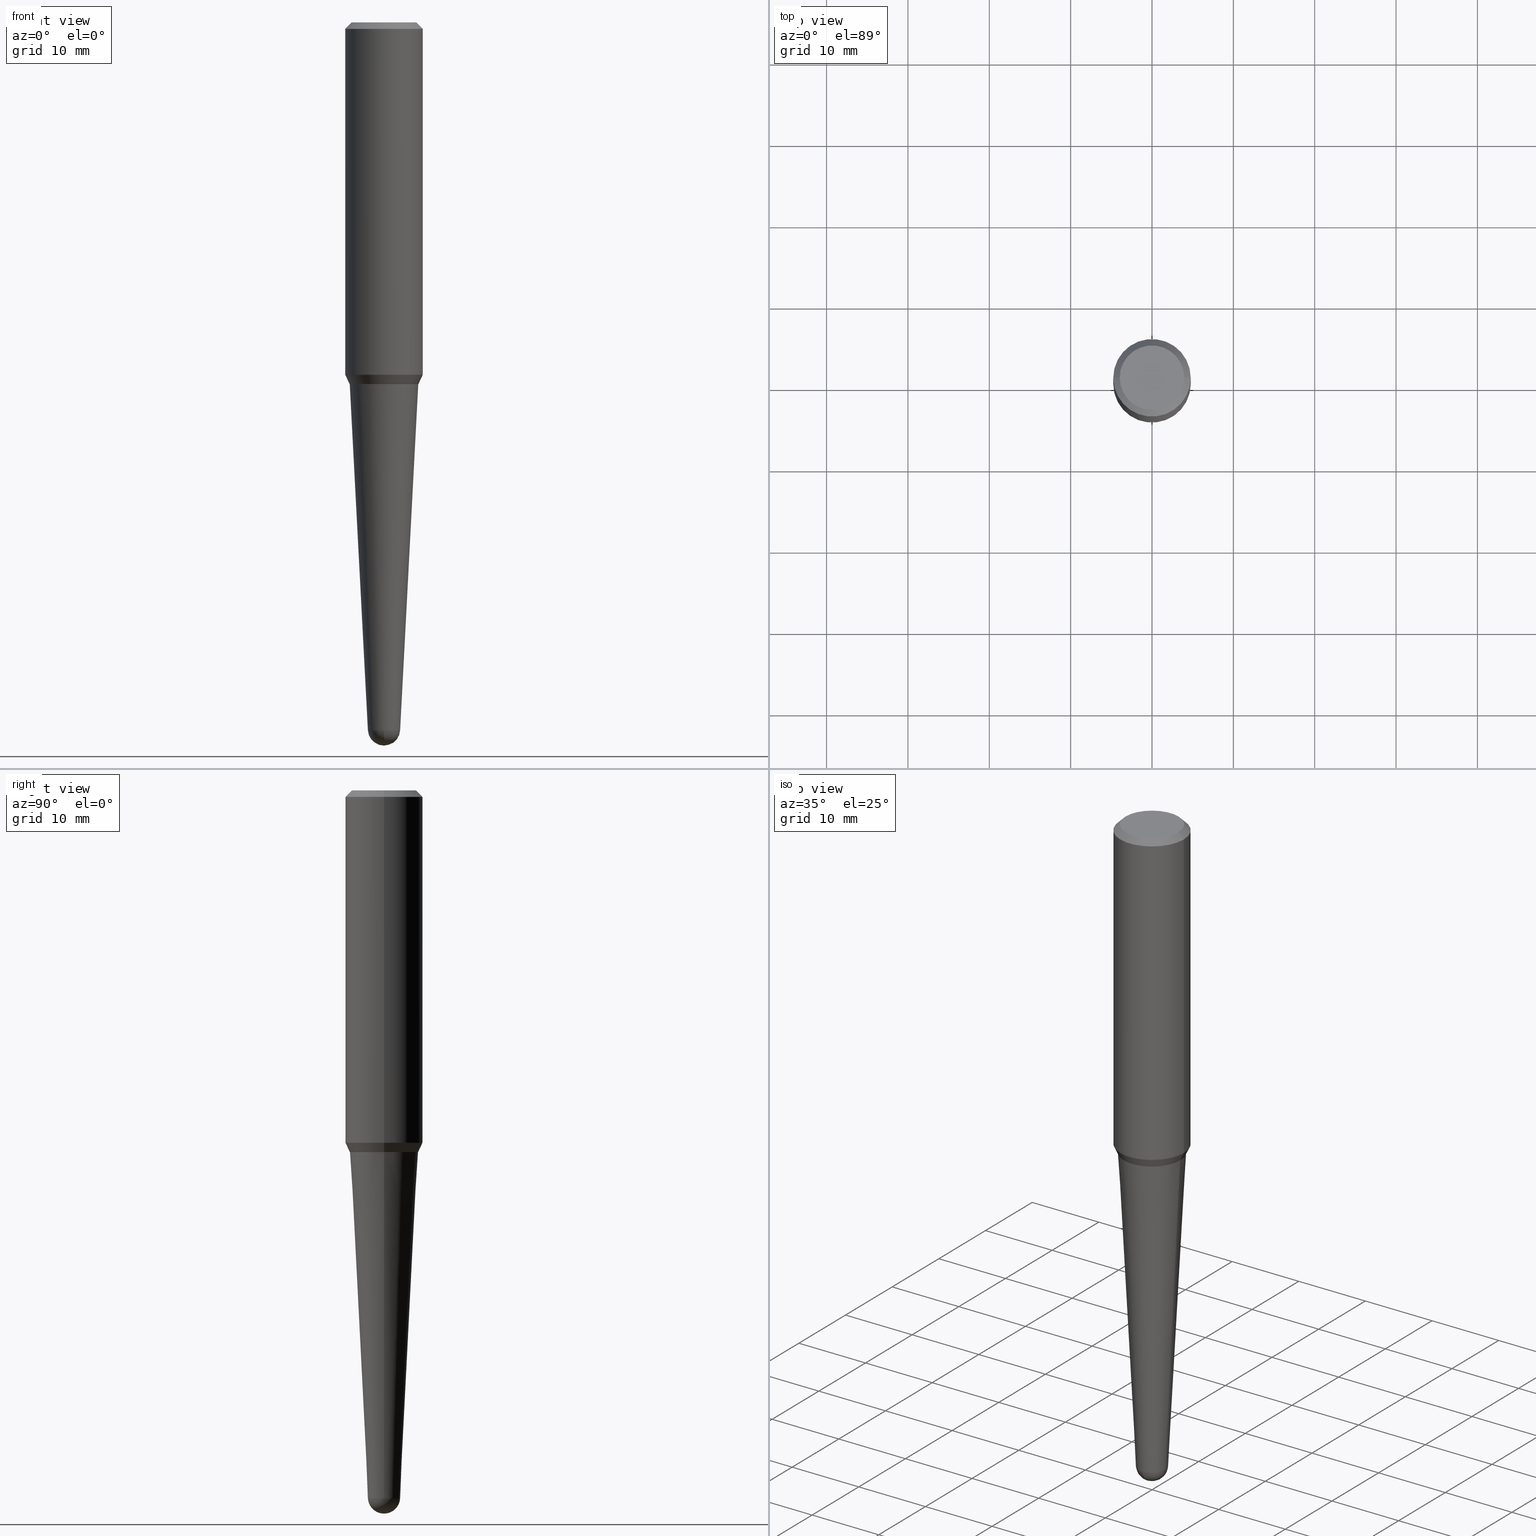
[diagram: canonical four-view strip — front | top / right | iso, engineering-drawing reading convention]
A machine part, canonical four-view strip (front | top / right | iso — engineering-drawing reading convention). The complete STEP part file that produces these views, byte-faithful:
ISO-10303-21;
HEADER;
FILE_DESCRIPTION (( 'STEP AP203' ),
    '1' );
FILE_NAME ('32423.STEP',
    '2024-03-04T15:23:28',
    ( '' ),
    ( '' ),
    'SwSTEP 2.0',
    'SolidWorks 2023',
    '' );
FILE_SCHEMA (( 'CONFIG_CONTROL_DESIGN' ));
ENDSEC;

DATA;
#1 = CIRCLE ( 'NONE', #303, 0.07809999999999994724 ) ;
#2 = CC_DESIGN_SECURITY_CLASSIFICATION ( #407, ( #294 ) ) ;
#3 = DIRECTION ( 'NONE',  ( 2.445468806185136597E-29, -3.491481338843145583E-15, -1.000000000000000000 ) ) ;
#4 = CARTESIAN_POINT ( 'NONE',  ( 7.722011548868259977E-45, -1.102498594666746165E-30, -3.157681475771667581E-16 ) ) ;
#5 = PRODUCT_RELATED_PRODUCT_CATEGORY ( 'detail', '', ( #6 ) ) ;
#6 = PRODUCT ( '32423', '32423', '', ( #340 ) ) ;
#7 = PLANE ( 'NONE',  #127 ) ;
#8 = DIRECTION ( 'NONE',  ( -2.445468806185136597E-29, 3.491481338843145583E-15, 1.000000000000000000 ) ) ;
#9 = CARTESIAN_POINT ( 'NONE',  ( 0.1874999999999999722, -1.395452166421010480E-15, -0.03125000000000003469 ) ) ;
#10 = VECTOR ( 'NONE', #202, 39.37007874015748143 ) ;
#11 = DIRECTION ( 'NONE',  ( -2.445468806185136597E-29, 3.491481338843145583E-15, 1.000000000000000000 ) ) ;
#12 = EDGE_CURVE ( 'NONE', #411, #355, #79, .T. ) ;
#13 = AXIS2_PLACEMENT_3D ( 'NONE', #384, #3, #298 ) ;
#14 = ORIENTED_EDGE ( 'NONE', *, *, #350, .T. ) ;
#15 = EDGE_CURVE ( 'NONE', #355, #287, #195, .T. ) ;
#16 = APPROVAL_ROLE ( '' ) ;
#17 = CC_DESIGN_DATE_AND_TIME_ASSIGNMENT ( #316, #450, ( #267 ) ) ;
#18 = VECTOR ( 'NONE', #256, 39.37007874015748854 ) ;
#19 = DATE_AND_TIME ( #348, #401 ) ;
#20 = LOCAL_TIME ( 10, 23, 28.00000000000000000, #372 ) ;
#21 = CARTESIAN_POINT ( 'NONE',  ( -1.450455682483482035E-44, 2.070866303999251778E-30, 5.931196827434296760E-16 ) ) ;
#22 = ORIENTED_EDGE ( 'NONE', *, *, #434, .T. ) ;
#23 = APPROVAL_STATUS ( 'not_yet_approved' ) ;
#24 = VERTEX_POINT ( 'NONE', #155 ) ;
#25 = CARTESIAN_POINT ( 'NONE',  ( 0.1875000000000002220, -7.262868483743506194E-15, -1.705168209104609645 ) ) ;
#26 = ORIENTED_EDGE ( 'NONE', *, *, #357, .F. ) ;
#27 = DIRECTION ( 'NONE',  ( -2.445468806185136597E-29, 3.491481338843145583E-15, 1.000000000000000000 ) ) ;
#28 = AXIS2_PLACEMENT_3D ( 'NONE', #153, #424, #189 ) ;
#29 = CARTESIAN_POINT ( 'NONE',  ( 0.1658277464057546224, -7.268061307051711819E-15, -1.750000000000000000 ) ) ;
#30 = DATE_AND_TIME ( #69, #82 ) ;
#31 = FACE_OUTER_BOUND ( 'NONE', #385, .T. ) ;
#32 = APPLICATION_PROTOCOL_DEFINITION ( 'international standard', 'config_control_design', 1994, #410 ) ;
#33 = EDGE_CURVE ( 'NONE', #209, #266, #203, .T. ) ;
#34 = CARTESIAN_POINT ( 'NONE',  ( 7.642090019328561499E-31, -1.091087918388484350E-16, -0.03125000000000003469 ) ) ;
#35 = DIRECTION ( 'NONE',  ( 0.4226182617406897268, 2.132291770428246021E-16, 0.9063077870366544886 ) ) ;
#36 = CARTESIAN_POINT ( 'NONE',  ( 4.279570410823988484E-29, -6.110092342975504671E-15, -1.750000000000000000 ) ) ;
#37 = DIRECTION ( 'NONE',  ( 1.000000000000000000, -6.982962677686263555E-15, 0.000000000000000000 ) ) ;
#38 = LENGTH_MEASURE_WITH_UNIT ( LENGTH_MEASURE( 0.02539999999999999897 ), #200 );
#39 = CARTESIAN_POINT ( 'NONE',  ( 0.1874999999999999722, -1.418414293905023123E-15, -0.03125000000000003469 ) ) ;
#40 = DIRECTION ( 'NONE',  ( 1.000000000000000000, -6.982962677686263555E-15, 0.000000000000000000 ) ) ;
#41 = DIRECTION ( 'NONE',  ( -0.4226182617406897268, 6.167240084480783969E-15, 0.9063077870366544886 ) ) ;
#42 = DIRECTION ( 'NONE',  ( 1.000000000000000000, -6.982962677686266711E-15, 0.000000000000000000 ) ) ;
#43 = AXIS2_PLACEMENT_3D ( 'NONE', #452, #445, #277 ) ;
#44 = APPROVAL ( #101, 'UNSPECIFIED' ) ;
#45 = ORIENTED_EDGE ( 'NONE', *, *, #243, .T. ) ;
#46 = CC_DESIGN_PERSON_AND_ORGANIZATION_ASSIGNMENT ( #205, #446, ( #407 ) ) ;
#47 = EDGE_CURVE ( 'NONE', #371, #194, #419, .T. ) ;
#48 = ORIENTED_EDGE ( 'NONE', *, *, #159, .T. ) ;
#49 = AXIS2_PLACEMENT_3D ( 'NONE', #120, #183, #149 ) ;
#50 = EDGE_CURVE ( 'NONE', #252, #272, #118, .T. ) ;
#51 = AXIS2_PLACEMENT_3D ( 'NONE', #21, #130, #142 ) ;
#52 = ADVANCED_FACE ( 'NONE', ( #427 ), #375, .T. ) ;
#53 = EDGE_CURVE ( 'NONE', #70, #355, #1, .T. ) ;
#54 = EDGE_LOOP ( 'NONE', ( #125, #14, #306, #26, #45 ) ) ;
#55 = APPLICATION_PROTOCOL_DEFINITION ( 'international standard', 'config_control_design', 1994, #436 ) ;
#56 = CALENDAR_DATE ( 2024, 4, 3 ) ;
#57 = CARTESIAN_POINT ( 'NONE',  ( 4.169935664663897396E-29, -5.953562981677331975E-15, -1.705168209104609645 ) ) ;
#58 = EDGE_CURVE ( 'NONE', #284, #456, #269, .T. ) ;
#59 = AXIS2_PLACEMENT_3D ( 'NONE', #295, #227, #37 ) ;
#60 = SECURITY_CLASSIFICATION_LEVEL ( 'unclassified' ) ;
#61 = APPROVAL_PERSON_ORGANIZATION ( #134, #44, #16 ) ;
#62 = CARTESIAN_POINT ( 'NONE',  ( 8.378145410457613452E-29, -1.196177120752549174E-14, -3.425987438182573896 ) ) ;
#63 = ORIENTED_EDGE ( 'NONE', *, *, #367, .F. ) ;
#64 = FACE_OUTER_BOUND ( 'NONE', #268, .T. ) ;
#65 = PERSON_AND_ORGANIZATION ( #198, #395 ) ;
#66 = ORIENTED_EDGE ( 'NONE', *, *, #434, .F. ) ;
#67 = DIRECTION ( 'NONE',  ( -2.438088387897960049E-29, 3.491481338843145188E-15, 1.000000000000000000 ) ) ;
#68 = CARTESIAN_POINT ( 'NONE',  ( 4.169935664663897396E-29, -5.953562981677331975E-15, -1.705168209104609645 ) ) ;
#69 = CALENDAR_DATE ( 2024, 4, 3 ) ;
#70 = VERTEX_POINT ( 'NONE', #331 ) ;
#71 = CIRCLE ( 'NONE', #43, 0.1874999999999999722 ) ;
#72 = CARTESIAN_POINT ( 'NONE',  ( 4.279570410823988484E-29, -6.110092342975503093E-15, -1.749999999999999556 ) ) ;
#73 = DIRECTION ( 'NONE',  ( 1.000000000000000000, -6.982962677686263555E-15, 0.000000000000000000 ) ) ;
#74 = LINE ( 'NONE', #212, #165 ) ;
#75 = EDGE_CURVE ( 'NONE', #194, #266, #334, .T. ) ;
#76 = DIRECTION ( 'NONE',  ( 1.000000000000000000, -6.982962677686265133E-15, 0.000000000000000000 ) ) ;
#77 = DIRECTION ( 'NONE',  ( -1.000000000000000000, 6.982962677686265922E-15, -4.876176775795935793E-29 ) ) ;
#78 = DIRECTION ( 'NONE',  ( -2.445468806185136597E-29, 3.491481338843145583E-15, 1.000000000000000000 ) ) ;
#79 = CIRCLE ( 'NONE', #138, 0.07799296666433265524 ) ;
#80 = ORIENTED_EDGE ( 'NONE', *, *, #228, .F. ) ;
#81 = AXIS2_PLACEMENT_3D ( 'NONE', #365, #217, #358 ) ;
#82 = LOCAL_TIME ( 10, 23, 28.00000000000000000, #354 ) ;
#83 = DIRECTION ( 'NONE',  ( 0.7071067811864750752, -2.468850131081498176E-15, 0.7071067811866199593 ) ) ;
#84 = DIRECTION ( 'NONE',  ( 2.438088387897960049E-29, -3.491481338843145188E-15, -1.000000000000000000 ) ) ;
#85 = DIRECTION ( 'NONE',  ( -1.000000000000000000, 7.105427357601001070E-15, -4.926315508542082329E-29 ) ) ;
#86 = AXIS2_PLACEMENT_3D ( 'NONE', #180, #8, #360 ) ;
#87 = ORIENTED_EDGE ( 'NONE', *, *, #357, .T. ) ;
#88 = EDGE_CURVE ( 'NONE', #392, #411, #113, .T. ) ;
#89 = DIRECTION ( 'NONE',  ( 1.000000000000000000, 0.000000000000000000, 0.000000000000000000 ) ) ;
#90 = ORIENTED_EDGE ( 'NONE', *, *, #243, .F. ) ;
#91 = VECTOR ( 'NONE', #35, 39.37007874015748143 ) ;
#92 = LOCAL_TIME ( 10, 23, 28.00000000000000000, #280 ) ;
#93 = CARTESIAN_POINT ( 'NONE',  ( 8.293775826086788448E-29, -3.615217139357610572E-16, -1.750000000000000000 ) ) ;
#94 = ADVANCED_BREP_SHAPE_REPRESENTATION ( '32423', ( #97, #249, #186 ), #242 ) ;
#95 = APPROVAL_DATE_TIME ( #136, #44 ) ;
#96 = FACE_OUTER_BOUND ( 'NONE', #377, .T. ) ;
#97 = MANIFOLD_SOLID_BREP ( 'Body-Move/Copy2[1]', #222 ) ;
#98 = APPROVAL_DATE_TIME ( #19, #104 ) ;
#99 = DIRECTION ( 'NONE',  ( 1.000000000000000000, -6.982962677686266711E-15, 0.000000000000000000 ) ) ;
#100 = CONICAL_SURFACE ( 'NONE', #362, 0.1663277464057547061, 0.7853981633973459164 ) ;
#101 = APPROVAL_STATUS ( 'not_yet_approved' ) ;
#102 = ORIENTED_EDGE ( 'NONE', *, *, #75, .T. ) ;
#103 = LINE ( 'NONE', #351, #10 ) ;
#104 = APPROVAL ( #23, 'UNSPECIFIED' ) ;
#105 = COORDINATED_UNIVERSAL_TIME_OFFSET ( 5, 0, .BEHIND. ) ;
#106 = ORIENTED_EDGE ( 'NONE', *, *, #367, .T. ) ;
#107 = CARTESIAN_POINT ( 'NONE',  ( -0.07799296666433265524, -8.169706592751506412E-15, -3.425987438182573896 ) ) ;
#108 = DIRECTION ( 'NONE',  ( 2.438088387897960049E-29, -3.491481338843145188E-15, -1.000000000000000000 ) ) ;
#109 = ORIENTED_EDGE ( 'NONE', *, *, #228, .T. ) ;
#110 = CARTESIAN_POINT ( 'NONE',  ( 0.07799296666433265524, -9.887227244958132819E-15, -3.425987438182573896 ) ) ;
#111 = ORIENTED_EDGE ( 'NONE', *, *, #15, .T. ) ;
#112 = CC_DESIGN_PERSON_AND_ORGANIZATION_ASSIGNMENT ( #408, #374, ( #294 ) ) ;
#113 = CIRCLE ( 'NONE', #59, 0.07799296666433265524 ) ;
#114 = CARTESIAN_POINT ( 'NONE',  ( -0.07799296666433265524, -1.140759784848827963E-14, -3.425987438182573896 ) ) ;
#115 = DIRECTION ( 'NONE',  ( -7.105427357601000281E-15, -1.000000000000000000, 0.000000000000000000 ) ) ;
#116 = ADVANCED_FACE ( 'NONE', ( #31 ), #396, .F. ) ;
#117 = DIRECTION ( 'NONE',  ( 2.445468806185136597E-29, -3.491481338843145583E-15, -1.000000000000000000 ) ) ;
#118 = LINE ( 'NONE', #219, #91 ) ;
#119 = ORIENTED_EDGE ( 'NONE', *, *, #12, .T. ) ;
#120 = CARTESIAN_POINT ( 'NONE',  ( 8.659436449305203062E-29, -1.153036080066178855E-14, -3.421899999999999942 ) ) ;
#121 = CARTESIAN_POINT ( 'NONE',  ( 4.279570410823988484E-29, -6.110092342975503093E-15, -1.749999999999999556 ) ) ;
#122 =( CONVERSION_BASED_UNIT ( 'INCH', #38 ) LENGTH_UNIT ( ) NAMED_UNIT ( #448 ) );
#123 = ORIENTED_EDGE ( 'NONE', *, *, #33, .F. ) ;
#124 = VECTOR ( 'NONE', #373, 39.37007874015748854 ) ;
#125 = ORIENTED_EDGE ( 'NONE', *, *, #88, .T. ) ;
#126 = ORIENTED_EDGE ( 'NONE', *, *, #409, .T. ) ;
#127 = AXIS2_PLACEMENT_3D ( 'NONE', #36, #108, #77 ) ;
#128 = EDGE_LOOP ( 'NONE', ( #314, #102, #126, #247 ) ) ;
#129 = ORIENTED_EDGE ( 'NONE', *, *, #224, .F. ) ;
#130 = DIRECTION ( 'NONE',  ( -2.445468806185136597E-29, 3.491481338843145583E-15, 1.000000000000000000 ) ) ;
#131 = AXIS2_PLACEMENT_3D ( 'NONE', #322, #211, #239 ) ;
#132 = AXIS2_PLACEMENT_3D ( 'NONE', #93, #67, #237 ) ;
#133 = CARTESIAN_POINT ( 'NONE',  ( -0.1663277464057547061, -4.925613396161822668E-15, -1.749999999999999556 ) ) ;
#134 = PERSON_AND_ORGANIZATION ( #198, #395 ) ;
#135 = CARTESIAN_POINT ( 'NONE',  ( -0.1874999999999999722, 1.200196710227326499E-15, -0.03125000000000003469 ) ) ;
#136 = DATE_AND_TIME ( #307, #454 ) ;
#137 = EDGE_LOOP ( 'NONE', ( #363, #304, #265, #63 ) ) ;
#138 = AXIS2_PLACEMENT_3D ( 'NONE', #299, #422, #40 ) ;
#139 = AXIS2_PLACEMENT_3D ( 'NONE', #4, #84, #147 ) ;
#140 = EDGE_LOOP ( 'NONE', ( #255, #281, #221, #447 ) ) ;
#141 = CC_DESIGN_APPROVAL ( #44, ( #267 ) ) ;
#142 = DIRECTION ( 'NONE',  ( 1.000000000000000000, -6.982962677686266711E-15, 4.852736867747363404E-29 ) ) ;
#143 = EDGE_CURVE ( 'NONE', #24, #270, #333, .T. ) ;
#144 = DIRECTION ( 'NONE',  ( -2.445468806185136597E-29, 3.491481338843145583E-15, 1.000000000000000000 ) ) ;
#145 = EDGE_LOOP ( 'NONE', ( #245, #106, #231, #123 ) ) ;
#146 = CARTESIAN_POINT ( 'NONE',  ( -0.1874999999999999722, -1.699068257207900914E-15, -0.03125000000000003469 ) ) ;
#147 = DIRECTION ( 'NONE',  ( -1.000000000000000000, 6.982962677686265922E-15, -4.876176775795935793E-29 ) ) ;
#148 = EDGE_CURVE ( 'NONE', #383, #156, #370, .T. ) ;
#149 = DIRECTION ( 'NONE',  ( 6.982962677686265922E-15, 1.000000000000000000, 0.000000000000000000 ) ) ;
#150 = DIRECTION ( 'NONE',  ( 1.000000000000000000, -6.982962677686266711E-15, 0.000000000000000000 ) ) ;
#151 = AXIS2_PLACEMENT_3D ( 'NONE', #285, #169, #99 ) ;
#152 = FACE_OUTER_BOUND ( 'NONE', #387, .T. ) ;
#153 = CARTESIAN_POINT ( 'NONE',  ( 4.279570410823988484E-29, -6.110092342975503093E-15, -1.749999999999999556 ) ) ;
#154 = FACE_OUTER_BOUND ( 'NONE', #128, .T. ) ;
#155 = CARTESIAN_POINT ( 'NONE',  ( -0.1668277464057542070, -4.922964168987714623E-15, -1.749500000000000055 ) ) ;
#156 = VERTEX_POINT ( 'NONE', #327 ) ;
#157 = ORIENTED_EDGE ( 'NONE', *, *, #409, .F. ) ;
#158 = AXIS2_PLACEMENT_3D ( 'NONE', #191, #11, #336 ) ;
#159 = EDGE_CURVE ( 'NONE', #270, #209, #430, .T. ) ;
#160 = AXIS2_PLACEMENT_3D ( 'NONE', #62, #27, #274 ) ;
#161 = CARTESIAN_POINT ( 'NONE',  ( 4.279570410823988484E-29, -6.110092342975504671E-15, -1.750000000000000000 ) ) ;
#162 = ADVANCED_FACE ( 'NONE', ( #257 ), #330, .T. ) ;
#163 = ORIENTED_EDGE ( 'NONE', *, *, #15, .F. ) ;
#164 = CLOSED_SHELL ( 'NONE', ( #288, #397, #428, #52, #460, #236, #162, #441, #290, #116 ) ) ;
#165 = VECTOR ( 'NONE', #83, 39.37007874015748143 ) ;
#166 = ORIENTED_EDGE ( 'NONE', *, *, #305, .T. ) ;
#167 = CIRCLE ( 'NONE', #192, 0.1875000000000002220 ) ;
#168 = PERSON_AND_ORGANIZATION ( #198, #395 ) ;
#169 = DIRECTION ( 'NONE',  ( -2.445468806185136597E-29, 3.491481338843145583E-15, 1.000000000000000000 ) ) ;
#170 = ORIENTED_EDGE ( 'NONE', *, *, #273, .F. ) ;
#171 = EDGE_LOOP ( 'NONE', ( #438, #226 ) ) ;
#172 = EDGE_CURVE ( 'NONE', #24, #252, #301, .T. ) ;
#173 = CARTESIAN_POINT ( 'NONE',  ( 0.07799296666433265524, -1.250639318286455540E-14, -3.425987438182573896 ) ) ;
#174 = DIRECTION ( 'NONE',  ( -1.000000000000000000, 6.982962677686265922E-15, -4.883557194083112901E-29 ) ) ;
#175 = CIRCLE ( 'NONE', #429, 0.1875000000000002220 ) ;
#176 = ORIENTED_EDGE ( 'NONE', *, *, #47, .T. ) ;
#177 = CC_DESIGN_APPROVAL ( #104, ( #294 ) ) ;
#178 = DIRECTION ( 'NONE',  ( -2.445468806185136597E-29, 3.491481338843145583E-15, 1.000000000000000000 ) ) ;
#179 = APPROVAL_DATE_TIME ( #30, #193 ) ;
#180 = CARTESIAN_POINT ( 'NONE',  ( 4.279570410823988484E-29, -6.110092342975504671E-15, -1.750000000000000000 ) ) ;
#181 = CARTESIAN_POINT ( 'NONE',  ( 0.1875000000000001110, -1.309305502066173628E-15, 5.931196827434387479E-16 ) ) ;
#182 = CARTESIAN_POINT ( 'NONE',  ( 8.659436449305203062E-29, -1.153036080066178855E-14, -3.421899999999999942 ) ) ;
#183 = DIRECTION ( 'NONE',  ( -1.000000000000000000, 6.982962677686265922E-15, -4.883557194083112901E-29 ) ) ;
#184 = CARTESIAN_POINT ( 'NONE',  ( 7.642090019328561499E-31, -1.091087918388484350E-16, -0.03125000000000003469 ) ) ;
#185 = AXIS2_PLACEMENT_3D ( 'NONE', #121, #398, #76 ) ;
#186 = AXIS2_PLACEMENT_3D ( 'NONE', #403, #432, #89 ) ;
#187 = CARTESIAN_POINT ( 'NONE',  ( -0.1875000000000002220, -4.621295352127141759E-15, -1.705168209104609645 ) ) ;
#188 = DIRECTION ( 'NONE',  ( -2.445468806185136597E-29, 3.491481338843145583E-15, 1.000000000000000000 ) ) ;
#189 = DIRECTION ( 'NONE',  ( 1.000000000000000000, -6.982962677686265133E-15, 0.000000000000000000 ) ) ;
#190 = EDGE_CURVE ( 'NONE', #252, #24, #196, .T. ) ;
#191 = CARTESIAN_POINT ( 'NONE',  ( 4.278347676420896243E-29, -6.108346602306083167E-15, -1.749500000000000055 ) ) ;
#192 = AXIS2_PLACEMENT_3D ( 'NONE', #68, #361, #415 ) ;
#193 = APPROVAL ( #251, 'UNSPECIFIED' ) ;
#194 = VERTEX_POINT ( 'NONE', #366 ) ;
#195 = CIRCLE ( 'NONE', #293, 0.07799296666433265524 ) ;
#196 = CIRCLE ( 'NONE', #158, 0.1668277464057542070 ) ;
#197 = VECTOR ( 'NONE', #279, 39.37007874015748854 ) ;
#198 = PERSON ( 'UNSPECIFIED', 'UNSPECIFIED', 'UNSPECIFIED', ('UNSPECIFIED'), ('UNSPECIFIED'), ('UNSPECIFIED') ) ;
#199 = APPROVAL_ROLE ( '' ) ;
#200 =( LENGTH_UNIT ( ) NAMED_UNIT ( * ) SI_UNIT ( $, .METRE. ) );
#201 = EDGE_CURVE ( 'NONE', #456, #284, #275, .T. ) ;
#202 = DIRECTION ( 'NONE',  ( -0.7071067811864750752, 7.493145998870092258E-15, 0.7071067811866199593 ) ) ;
#203 = CIRCLE ( 'NONE', #400, 0.1874999999999999722 ) ;
#204 = CC_DESIGN_APPROVAL ( #193, ( #407 ) ) ;
#205 = PERSON_AND_ORGANIZATION ( #198, #395 ) ;
#206 = ORIENTED_EDGE ( 'NONE', *, *, #190, .T. ) ;
#207 = FACE_OUTER_BOUND ( 'NONE', #234, .T. ) ;
#208 = DATE_TIME_ROLE ( 'classification_date' ) ;
#209 = VERTEX_POINT ( 'NONE', #146 ) ;
#210 = ORIENTED_EDGE ( 'NONE', *, *, #53, .F. ) ;
#211 = DIRECTION ( 'NONE',  ( -2.445468806185136597E-29, 3.491481338843145583E-15, 1.000000000000000000 ) ) ;
#212 = CARTESIAN_POINT ( 'NONE',  ( 0.1663277464057547061, -7.271552788390554826E-15, -1.749999999999999556 ) ) ;
#213 = CIRCLE ( 'NONE', #283, 0.1663277464057547061 ) ;
#214 = PERSON_AND_ORGANIZATION ( #198, #395 ) ;
#215 = ORIENTED_EDGE ( 'NONE', *, *, #319, .F. ) ;
#216 = CONICAL_SURFACE ( 'NONE', #151, 0.1668277464057542070, 0.4363323129985716697 ) ;
#217 = DIRECTION ( 'NONE',  ( -2.445468806185136597E-29, 3.491481338843145583E-15, 1.000000000000000000 ) ) ;
#218 = DIRECTION ( 'NONE',  ( 1.000000000000000000, -6.982962677686265133E-15, 0.000000000000000000 ) ) ;
#219 = CARTESIAN_POINT ( 'NONE',  ( 0.1668277464057542070, -7.273298529059973963E-15, -1.749500000000000055 ) ) ;
#220 = CARTESIAN_POINT ( 'NONE',  ( 8.659436449305203062E-29, -1.153036080066178855E-14, -3.421899999999999942 ) ) ;
#221 = ORIENTED_EDGE ( 'NONE', *, *, #442, .T. ) ;
#222 = CLOSED_SHELL ( 'NONE', ( #230, #335, #328, #449, #233 ) ) ;
#223 = CONICAL_SURFACE ( 'NONE', #13, 0.1874999999999999722, 0.7853981633974497223 ) ;
#224 = EDGE_CURVE ( 'NONE', #70, #392, #337, .T. ) ;
#225 = ORIENTED_EDGE ( 'NONE', *, *, #50, .F. ) ;
#226 = ORIENTED_EDGE ( 'NONE', *, *, #201, .T. ) ;
#227 = DIRECTION ( 'NONE',  ( -2.445468806185136597E-29, 3.491481338843145583E-15, 1.000000000000000000 ) ) ;
#228 = EDGE_CURVE ( 'NONE', #272, #270, #167, .T. ) ;
#229 = VECTOR ( 'NONE', #41, 39.37007874015748143 ) ;
#230 = ADVANCED_FACE ( 'NONE', ( #289 ), #435, .T. ) ;
#231 = ORIENTED_EDGE ( 'NONE', *, *, #319, .T. ) ;
#232 = CC_DESIGN_PERSON_AND_ORGANIZATION_ASSIGNMENT ( #313, #278, ( #294 ) ) ;
#233 = ADVANCED_FACE ( 'NONE', ( #417 ), #7, .F. ) ;
#234 = EDGE_LOOP ( 'NONE', ( #431, #119, #111, #87, #349 ) ) ;
#235 = VECTOR ( 'NONE', #462, 39.37007874015748143 ) ;
#236 = ADVANCED_FACE ( 'NONE', ( #423 ), #100, .T. ) ;
#237 = DIRECTION ( 'NONE',  ( 1.000000000000000000, -6.982962677686265922E-15, 4.876176775795935793E-29 ) ) ;
#238 = PERSON_AND_ORGANIZATION_ROLE ( 'creator' ) ;
#239 = DIRECTION ( 'NONE',  ( 1.000000000000000000, -6.982962677686266711E-15, 4.852736867747363404E-29 ) ) ;
#240 = CYLINDRICAL_SURFACE ( 'NONE', #51, 0.1875000000000001110 ) ;
#241 = CIRCLE ( 'NONE', #394, 0.07799296666433265524 ) ;
#242 =( GEOMETRIC_REPRESENTATION_CONTEXT ( 3 ) GLOBAL_UNCERTAINTY_ASSIGNED_CONTEXT ( ( #439 ) ) GLOBAL_UNIT_ASSIGNED_CONTEXT ( ( #122, #258, #391 ) ) REPRESENTATION_CONTEXT ( 'NONE', 'WORKASPACE' ) );
#243 = EDGE_CURVE ( 'NONE', #287, #392, #241, .T. ) ;
#244 = CALENDAR_DATE ( 2024, 4, 3 ) ;
#245 = ORIENTED_EDGE ( 'NONE', *, *, #159, .F. ) ;
#246 = LINE ( 'NONE', #135, #197 ) ;
#247 = ORIENTED_EDGE ( 'NONE', *, *, #442, .F. ) ;
#248 = DIRECTION ( 'NONE',  ( 1.000000000000000000, -6.982962677686266711E-15, 4.891558762689330142E-29 ) ) ;
#249 = MANIFOLD_SOLID_BREP ( 'Body-Move/Copy2[2]', #164 ) ;
#250 = CARTESIAN_POINT ( 'NONE',  ( 8.378145410457613452E-29, -1.196177120752549174E-14, -3.425987438182573896 ) ) ;
#251 = APPROVAL_STATUS ( 'not_yet_approved' ) ;
#252 = VERTEX_POINT ( 'NONE', #421 ) ;
#253 = FACE_OUTER_BOUND ( 'NONE', #140, .T. ) ;
#254 = AXIS2_PLACEMENT_3D ( 'NONE', #250, #259, #332 ) ;
#255 = ORIENTED_EDGE ( 'NONE', *, *, #75, .F. ) ;
#256 = DIRECTION ( 'NONE',  ( -0.05233595624294384158, 3.858565720288028779E-15, 0.9986295347545738332 ) ) ;
#257 = FACE_OUTER_BOUND ( 'NONE', #137, .T. ) ;
#258 =( NAMED_UNIT ( * ) PLANE_ANGLE_UNIT ( ) SI_UNIT ( $, .RADIAN. ) );
#259 = DIRECTION ( 'NONE',  ( -2.445468806185136597E-29, 3.491481338843145583E-15, 1.000000000000000000 ) ) ;
#260 = DIRECTION ( 'NONE',  ( -2.445468806185136597E-29, 3.491481338843145583E-15, 1.000000000000000000 ) ) ;
#261 = ORIENTED_EDGE ( 'NONE', *, *, #148, .F. ) ;
#262 = DIRECTION ( 'NONE',  ( -2.445468806185136597E-29, 3.491481338843145583E-15, 1.000000000000000000 ) ) ;
#263 = CARTESIAN_POINT ( 'NONE',  ( 8.378145410457613452E-29, -1.196177120752549174E-14, -3.425987438182573896 ) ) ;
#264 = AXIS2_PLACEMENT_3D ( 'NONE', #34, #117, #455 ) ;
#265 = ORIENTED_EDGE ( 'NONE', *, *, #50, .T. ) ;
#266 = VERTEX_POINT ( 'NONE', #39 ) ;
#267 = PRODUCT_DEFINITION ( 'UNKNOWN', '', #294, #271 ) ;
#268 = EDGE_LOOP ( 'NONE', ( #317, #261 ) ) ;
#269 = CIRCLE ( 'NONE', #86, 0.1658277464057546502 ) ;
#270 = VERTEX_POINT ( 'NONE', #187 ) ;
#271 = DESIGN_CONTEXT ( 'detailed design', #436, 'design' ) ;
#272 = VERTEX_POINT ( 'NONE', #25 ) ;
#273 = EDGE_CURVE ( 'NONE', #156, #252, #74, .T. ) ;
#274 = DIRECTION ( 'NONE',  ( 1.000000000000000000, -6.982962677686263555E-15, 0.000000000000000000 ) ) ;
#275 = CIRCLE ( 'NONE', #318, 0.1658277464057546502 ) ;
#276 = APPROVAL_PERSON_ORGANIZATION ( #214, #193, #382 ) ;
#277 = DIRECTION ( 'NONE',  ( 1.000000000000000000, -6.982962677686266711E-15, 0.000000000000000000 ) ) ;
#278 = PERSON_AND_ORGANIZATION_ROLE ( 'creator' ) ;
#279 = DIRECTION ( 'NONE',  ( -0.7071067811865484609, 2.468850131082267316E-15, -0.7071067811865464625 ) ) ;
#280 = COORDINATED_UNIVERSAL_TIME_OFFSET ( 5, 0, .BEHIND. ) ;
#281 = ORIENTED_EDGE ( 'NONE', *, *, #47, .F. ) ;
#282 = CARTESIAN_POINT ( 'NONE',  ( -0.1562500000000004718, 1.145642314307903527E-15, -6.315362951543414047E-16 ) ) ;
#283 = AXIS2_PLACEMENT_3D ( 'NONE', #72, #178, #218 ) ;
#284 = VERTEX_POINT ( 'NONE', #29 ) ;
#285 = CARTESIAN_POINT ( 'NONE',  ( 4.278347676420896243E-29, -6.108346602306083167E-15, -1.749500000000000055 ) ) ;
#286 = LINE ( 'NONE', #114, #18 ) ;
#287 = VERTEX_POINT ( 'NONE', #110 ) ;
#288 = ADVANCED_FACE ( 'NONE', ( #154 ), #453, .T. ) ;
#289 = FACE_OUTER_BOUND ( 'NONE', #54, .T. ) ;
#290 = ADVANCED_FACE ( 'NONE', ( #253 ), #223, .T. ) ;
#291 = DIRECTION ( 'NONE',  ( -2.445468806185136597E-29, 3.491481338843145583E-15, 1.000000000000000000 ) ) ;
#292 = DIRECTION ( 'NONE',  ( 6.982962677686266711E-15, 1.000000000000000000, 0.000000000000000000 ) ) ;
#293 = AXIS2_PLACEMENT_3D ( 'NONE', #263, #78, #73 ) ;
#294 = PRODUCT_DEFINITION_FORMATION_WITH_SPECIFIED_SOURCE ( 'ANY', '', #6, .NOT_KNOWN. ) ;
#295 = CARTESIAN_POINT ( 'NONE',  ( 8.378145410457613452E-29, -1.196177120752549174E-14, -3.425987438182573896 ) ) ;
#296 = DIRECTION ( 'NONE',  ( 1.000000000000000000, -6.982962677686270655E-15, 0.000000000000000000 ) ) ;
#297 = DIRECTION ( 'NONE',  ( 1.000000000000000000, -6.982962677686266711E-15, 0.000000000000000000 ) ) ;
#298 = DIRECTION ( 'NONE',  ( -1.000000000000000000, 6.982962677686266711E-15, 0.000000000000000000 ) ) ;
#299 = CARTESIAN_POINT ( 'NONE',  ( 8.378145410457613452E-29, -1.196177120752549174E-14, -3.425987438182573896 ) ) ;
#300 = DIRECTION ( 'NONE',  ( 0.7071067811865484609, -7.319954787623257623E-15, -0.7071067811865464625 ) ) ;
#301 = CIRCLE ( 'NONE', #368, 0.1668277464057542070 ) ;
#302 = AXIS2_PLACEMENT_3D ( 'NONE', #308, #444, #248 ) ;
#303 = AXIS2_PLACEMENT_3D ( 'NONE', #182, #85, #115 ) ;
#304 = ORIENTED_EDGE ( 'NONE', *, *, #172, .T. ) ;
#305 = EDGE_CURVE ( 'NONE', #156, #383, #213, .T. ) ;
#306 = ORIENTED_EDGE ( 'NONE', *, *, #58, .F. ) ;
#307 = CALENDAR_DATE ( 2024, 4, 3 ) ;
#308 = CARTESIAN_POINT ( 'NONE',  ( 1.544402309773652493E-44, -2.204997189333492680E-30, -6.315362951543336147E-16 ) ) ;
#309 = AXIS2_PLACEMENT_3D ( 'NONE', #323, #174, #356 ) ;
#310 = CIRCLE ( 'NONE', #302, 0.1562500000000004718 ) ;
#311 = PERSON_AND_ORGANIZATION ( #198, #395 ) ;
#312 = DIRECTION ( 'NONE',  ( -2.445468806185136597E-29, 3.491481338843145583E-15, 1.000000000000000000 ) ) ;
#313 = PERSON_AND_ORGANIZATION ( #198, #395 ) ;
#314 = ORIENTED_EDGE ( 'NONE', *, *, #457, .F. ) ;
#315 = DIRECTION ( 'NONE',  ( 1.000000000000000000, -6.982962677686265133E-15, 0.000000000000000000 ) ) ;
#316 = DATE_AND_TIME ( #56, #20 ) ;
#317 = ORIENTED_EDGE ( 'NONE', *, *, #305, .F. ) ;
#318 = AXIS2_PLACEMENT_3D ( 'NONE', #161, #458, #296 ) ;
#319 = EDGE_CURVE ( 'NONE', #272, #266, #388, .T. ) ;
#320 = DIRECTION ( 'NONE',  ( -2.445468806185136877E-29, 3.491481338843145188E-15, 1.000000000000000000 ) ) ;
#321 = ORIENTED_EDGE ( 'NONE', *, *, #53, .T. ) ;
#322 = CARTESIAN_POINT ( 'NONE',  ( -1.450455682483482035E-44, 2.070866303999251778E-30, 5.931196827434296760E-16 ) ) ;
#323 = CARTESIAN_POINT ( 'NONE',  ( 8.659436449305203062E-29, -1.153036080066178855E-14, -3.421899999999999942 ) ) ;
#324 = SHAPE_DEFINITION_REPRESENTATION ( #390, #94 ) ;
#325 = CARTESIAN_POINT ( 'NONE',  ( -0.1875000000000001110, 1.332267629550190807E-15, 5.931196827434205055E-16 ) ) ;
#326 = SPHERICAL_SURFACE ( 'NONE', #49, 0.07809999999999994724 ) ;
#327 = CARTESIAN_POINT ( 'NONE',  ( 0.1663277464057547061, -7.271552788390554826E-15, -1.749999999999999556 ) ) ;
#328 = ADVANCED_FACE ( 'NONE', ( #152 ), #386, .T. ) ;
#329 = CARTESIAN_POINT ( 'NONE',  ( -5.541733590371250335E-16, -0.07799296666434415992, -3.425987438182573896 ) ) ;
#330 = CONICAL_SURFACE ( 'NONE', #345, 0.1668277464057542070, 0.4363323129985716697 ) ;
#331 = CARTESIAN_POINT ( 'NONE',  ( 8.853766987427507370E-29, -1.179826324747476745E-14, -3.500000000000000000 ) ) ;
#332 = DIRECTION ( 'NONE',  ( 1.000000000000000000, -6.982962677686263555E-15, 0.000000000000000000 ) ) ;
#333 = LINE ( 'NONE', #389, #229 ) ;
#334 = LINE ( 'NONE', #9, #352 ) ;
#335 = ADVANCED_FACE ( 'NONE', ( #426 ), #326, .T. ) ;
#336 = DIRECTION ( 'NONE',  ( 1.000000000000000000, -6.982962677686266711E-15, 0.000000000000000000 ) ) ;
#337 = CIRCLE ( 'NONE', #443, 0.07809999999999994724 ) ;
#338 = VECTOR ( 'NONE', #320, 39.37007874015748143 ) ;
#339 = EDGE_LOOP ( 'NONE', ( #66, #346, #402, #440 ) ) ;
#340 = MECHANICAL_CONTEXT ( 'NONE', #410, 'mechanical' ) ;
#341 = PERSON_AND_ORGANIZATION_ROLE ( 'design_owner' ) ;
#342 = LINE ( 'NONE', #173, #124 ) ;
#343 = COORDINATED_UNIVERSAL_TIME_OFFSET ( 5, 0, .BEHIND. ) ;
#344 = FACE_OUTER_BOUND ( 'NONE', #145, .T. ) ;
#345 = AXIS2_PLACEMENT_3D ( 'NONE', #459, #291, #297 ) ;
#346 = ORIENTED_EDGE ( 'NONE', *, *, #148, .T. ) ;
#347 = ORIENTED_EDGE ( 'NONE', *, *, #88, .F. ) ;
#348 = CALENDAR_DATE ( 2024, 4, 3 ) ;
#349 = ORIENTED_EDGE ( 'NONE', *, *, #201, .F. ) ;
#350 = EDGE_CURVE ( 'NONE', #411, #456, #286, .T. ) ;
#351 = CARTESIAN_POINT ( 'NONE',  ( -0.1663277464057547061, -4.928262623335932292E-15, -1.749999999999999556 ) ) ;
#352 = VECTOR ( 'NONE', #300, 39.37007874015748854 ) ;
#353 = DIRECTION ( 'NONE',  ( 1.000000000000000000, -6.982962677686263555E-15, 0.000000000000000000 ) ) ;
#354 = COORDINATED_UNIVERSAL_TIME_OFFSET ( 5, 0, .BEHIND. ) ;
#355 = VERTEX_POINT ( 'NONE', #329 ) ;
#356 = DIRECTION ( 'NONE',  ( 6.982962677686265922E-15, 1.000000000000000000, 0.000000000000000000 ) ) ;
#357 = EDGE_CURVE ( 'NONE', #287, #284, #342, .T. ) ;
#358 = DIRECTION ( 'NONE',  ( 1.000000000000000000, -6.982962677686266711E-15, 4.891558762689330142E-29 ) ) ;
#359 = DIRECTION ( 'NONE',  ( 1.000000000000000000, -6.982962677686265133E-15, 0.000000000000000000 ) ) ;
#360 = DIRECTION ( 'NONE',  ( 1.000000000000000000, -6.982962677686270655E-15, 0.000000000000000000 ) ) ;
#361 = DIRECTION ( 'NONE',  ( -2.445468806185136597E-29, 3.491481338843145583E-15, 1.000000000000000000 ) ) ;
#362 = AXIS2_PLACEMENT_3D ( 'NONE', #381, #262, #359 ) ;
#363 = ORIENTED_EDGE ( 'NONE', *, *, #143, .F. ) ;
#364 = EDGE_LOOP ( 'NONE', ( #166, #22, #416, #170 ) ) ;
#365 = CARTESIAN_POINT ( 'NONE',  ( 1.544402309773652493E-44, -2.204997189333492680E-30, -6.315362951543336147E-16 ) ) ;
#366 = CARTESIAN_POINT ( 'NONE',  ( 0.1562500000000004718, -1.233702489286409101E-15, -6.315362951543255289E-16 ) ) ;
#367 = EDGE_CURVE ( 'NONE', #270, #272, #175, .T. ) ;
#368 = AXIS2_PLACEMENT_3D ( 'NONE', #418, #260, #42 ) ;
#369 = ORIENTED_EDGE ( 'NONE', *, *, #12, .F. ) ;
#370 = CIRCLE ( 'NONE', #28, 0.1663277464057547061 ) ;
#371 = VERTEX_POINT ( 'NONE', #282 ) ;
#372 = COORDINATED_UNIVERSAL_TIME_OFFSET ( 5, 0, .BEHIND. ) ;
#373 = DIRECTION ( 'NONE',  ( 0.05233595624294384158, 3.121236355867708811E-15, 0.9986295347545738332 ) ) ;
#374 = PERSON_AND_ORGANIZATION_ROLE ( 'design_supplier' ) ;
#375 = CONICAL_SURFACE ( 'NONE', #185, 0.1663277464057547061, 0.7853981633973459164 ) ;
#376 = DATE_AND_TIME ( #244, #92 ) ;
#377 = EDGE_LOOP ( 'NONE', ( #206, #379, #80, #225 ) ) ;
#378 = CARTESIAN_POINT ( 'NONE',  ( -0.1658277464057546224, -4.931815337014735557E-15, -1.750000000000000000 ) ) ;
#379 = ORIENTED_EDGE ( 'NONE', *, *, #143, .T. ) ;
#380 = FACE_OUTER_BOUND ( 'NONE', #413, .T. ) ;
#381 = CARTESIAN_POINT ( 'NONE',  ( 4.279570410823988484E-29, -6.110092342975503093E-15, -1.749999999999999556 ) ) ;
#382 = APPROVAL_ROLE ( '' ) ;
#383 = VERTEX_POINT ( 'NONE', #133 ) ;
#384 = CARTESIAN_POINT ( 'NONE',  ( 7.642090019328561499E-31, -1.091087918388484350E-16, -0.03125000000000003469 ) ) ;
#385 = EDGE_LOOP ( 'NONE', ( #176, #433 ) ) ;
#386 = SPHERICAL_SURFACE ( 'NONE', #309, 0.07809999999999994724 ) ;
#387 = EDGE_LOOP ( 'NONE', ( #210, #404, #90, #163 ) ) ;
#388 = LINE ( 'NONE', #181, #338 ) ;
#389 = CARTESIAN_POINT ( 'NONE',  ( -0.1668277464057542070, -4.922964168987714623E-15, -1.749500000000000055 ) ) ;
#390 = PRODUCT_DEFINITION_SHAPE ( 'NONE', 'NONE',  #267 ) ;
#391 =( NAMED_UNIT ( * ) SI_UNIT ( $, .STERADIAN. ) SOLID_ANGLE_UNIT ( ) );
#392 = VERTEX_POINT ( 'NONE', #412 ) ;
#393 = CARTESIAN_POINT ( 'NONE',  ( 8.378145410457613452E-29, -1.196177120752549174E-14, -3.425987438182573896 ) ) ;
#394 = AXIS2_PLACEMENT_3D ( 'NONE', #393, #144, #353 ) ;
#395 = ORGANIZATION ( 'UNSPECIFIED', 'UNSPECIFIED', '' ) ;
#396 = PLANE ( 'NONE',  #139 ) ;
#397 = ADVANCED_FACE ( 'NONE', ( #380 ), #414, .T. ) ;
#398 = DIRECTION ( 'NONE',  ( -2.445468806185136597E-29, 3.491481338843145583E-15, 1.000000000000000000 ) ) ;
#399 = CC_DESIGN_PERSON_AND_ORGANIZATION_ASSIGNMENT ( #311, #341, ( #6 ) ) ;
#400 = AXIS2_PLACEMENT_3D ( 'NONE', #184, #188, #150 ) ;
#401 = LOCAL_TIME ( 10, 23, 28.00000000000000000, #343 ) ;
#402 = ORIENTED_EDGE ( 'NONE', *, *, #273, .T. ) ;
#403 = CARTESIAN_POINT ( 'NONE',  ( 0.000000000000000000, 0.000000000000000000, 0.000000000000000000 ) ) ;
#404 = ORIENTED_EDGE ( 'NONE', *, *, #224, .T. ) ;
#405 = CC_DESIGN_PERSON_AND_ORGANIZATION_ASSIGNMENT ( #65, #238, ( #267 ) ) ;
#406 = PLANE ( 'NONE',  #132 ) ;
#407 = SECURITY_CLASSIFICATION ( '', '', #60 ) ;
#408 = PERSON_AND_ORGANIZATION ( #198, #395 ) ;
#409 = EDGE_CURVE ( 'NONE', #266, #209, #71, .T. ) ;
#410 = APPLICATION_CONTEXT ( 'configuration controlled 3d designs of mechanical parts and assemblies' ) ;
#411 = VERTEX_POINT ( 'NONE', #107 ) ;
#412 = CARTESIAN_POINT ( 'NONE',  ( 5.446219753391475755E-16, 0.07799296666432065095, -3.425987438182573896 ) ) ;
#413 = EDGE_LOOP ( 'NONE', ( #109, #48, #157, #215 ) ) ;
#414 = CYLINDRICAL_SURFACE ( 'NONE', #131, 0.1875000000000001110 ) ;
#415 = DIRECTION ( 'NONE',  ( 1.000000000000000000, -6.982962677686265133E-15, 0.000000000000000000 ) ) ;
#416 = ORIENTED_EDGE ( 'NONE', *, *, #190, .F. ) ;
#417 = FACE_OUTER_BOUND ( 'NONE', #171, .T. ) ;
#418 = CARTESIAN_POINT ( 'NONE',  ( 4.278347676420896243E-29, -6.108346602306083167E-15, -1.749500000000000055 ) ) ;
#419 = CIRCLE ( 'NONE', #81, 0.1562500000000004718 ) ;
#420 = APPROVAL_PERSON_ORGANIZATION ( #168, #104, #199 ) ;
#421 = CARTESIAN_POINT ( 'NONE',  ( 0.1668277464057542070, -7.273298529059973963E-15, -1.749500000000000055 ) ) ;
#422 = DIRECTION ( 'NONE',  ( -2.445468806185136597E-29, 3.491481338843145583E-15, 1.000000000000000000 ) ) ;
#423 = FACE_OUTER_BOUND ( 'NONE', #339, .T. ) ;
#424 = DIRECTION ( 'NONE',  ( -2.445468806185136597E-29, 3.491481338843145583E-15, 1.000000000000000000 ) ) ;
#425 = CC_DESIGN_DATE_AND_TIME_ASSIGNMENT ( #376, #208, ( #407 ) ) ;
#426 = FACE_OUTER_BOUND ( 'NONE', #451, .T. ) ;
#427 = FACE_OUTER_BOUND ( 'NONE', #364, .T. ) ;
#428 = ADVANCED_FACE ( 'NONE', ( #96 ), #216, .T. ) ;
#429 = AXIS2_PLACEMENT_3D ( 'NONE', #57, #312, #315 ) ;
#430 = LINE ( 'NONE', #325, #235 ) ;
#431 = ORIENTED_EDGE ( 'NONE', *, *, #350, .F. ) ;
#432 = DIRECTION ( 'NONE',  ( 0.000000000000000000, 0.000000000000000000, 1.000000000000000000 ) ) ;
#433 = ORIENTED_EDGE ( 'NONE', *, *, #457, .T. ) ;
#434 = EDGE_CURVE ( 'NONE', #383, #24, #103, .T. ) ;
#435 = CONICAL_SURFACE ( 'NONE', #254, 0.07799296666433265524, 0.05235987755982988989 ) ;
#436 = APPLICATION_CONTEXT ( 'configuration controlled 3d designs of mechanical parts and assemblies' ) ;
#437 = CONICAL_SURFACE ( 'NONE', #160, 0.07799296666433265524, 0.05235987755982988989 ) ;
#438 = ORIENTED_EDGE ( 'NONE', *, *, #58, .T. ) ;
#439 = UNCERTAINTY_MEASURE_WITH_UNIT (LENGTH_MEASURE( 1.000000000000000082E-05 ), #122, 'distance_accuracy_value', 'NONE');
#440 = ORIENTED_EDGE ( 'NONE', *, *, #172, .F. ) ;
#441 = ADVANCED_FACE ( 'NONE', ( #344 ), #240, .T. ) ;
#442 = EDGE_CURVE ( 'NONE', #371, #209, #246, .T. ) ;
#443 = AXIS2_PLACEMENT_3D ( 'NONE', #220, #461, #292 ) ;
#444 = DIRECTION ( 'NONE',  ( -2.445468806185136597E-29, 3.491481338843145583E-15, 1.000000000000000000 ) ) ;
#445 = DIRECTION ( 'NONE',  ( -2.445468806185136597E-29, 3.491481338843145583E-15, 1.000000000000000000 ) ) ;
#446 = PERSON_AND_ORGANIZATION_ROLE ( 'classification_officer' ) ;
#447 = ORIENTED_EDGE ( 'NONE', *, *, #33, .T. ) ;
#448 = DIMENSIONAL_EXPONENTS ( 1.000000000000000000, 0.000000000000000000, 0.000000000000000000, 0.000000000000000000, 0.000000000000000000, 0.000000000000000000, 0.000000000000000000 ) ;
#449 = ADVANCED_FACE ( 'NONE', ( #207 ), #437, .T. ) ;
#450 = DATE_TIME_ROLE ( 'creation_date' ) ;
#451 = EDGE_LOOP ( 'NONE', ( #129, #321, #369, #347 ) ) ;
#452 = CARTESIAN_POINT ( 'NONE',  ( 7.642090019328561499E-31, -1.091087918388484350E-16, -0.03125000000000003469 ) ) ;
#453 = CONICAL_SURFACE ( 'NONE', #264, 0.1874999999999999722, 0.7853981633974497223 ) ;
#454 = LOCAL_TIME ( 10, 23, 28.00000000000000000, #105 ) ;
#455 = DIRECTION ( 'NONE',  ( -1.000000000000000000, 6.982962677686266711E-15, 0.000000000000000000 ) ) ;
#456 = VERTEX_POINT ( 'NONE', #378 ) ;
#457 = EDGE_CURVE ( 'NONE', #194, #371, #310, .T. ) ;
#458 = DIRECTION ( 'NONE',  ( -2.445468806185136597E-29, 3.491481338843145583E-15, 1.000000000000000000 ) ) ;
#459 = CARTESIAN_POINT ( 'NONE',  ( 4.278347676420896243E-29, -6.108346602306083167E-15, -1.749500000000000055 ) ) ;
#460 = ADVANCED_FACE ( 'NONE', ( #64 ), #406, .F. ) ;
#461 = DIRECTION ( 'NONE',  ( 1.000000000000000000, -6.982962677686265922E-15, 4.883557194083112340E-29 ) ) ;
#462 = DIRECTION ( 'NONE',  ( -2.445468806185136877E-29, 3.491481338843145188E-15, 1.000000000000000000 ) ) ;
ENDSEC;
END-ISO-10303-21;
